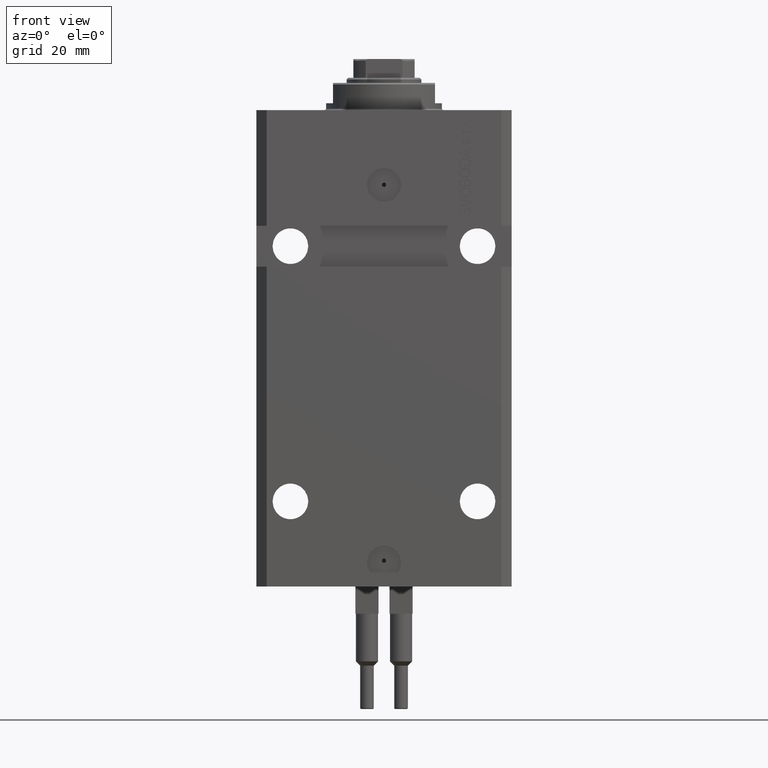
[diagram: clean part render]
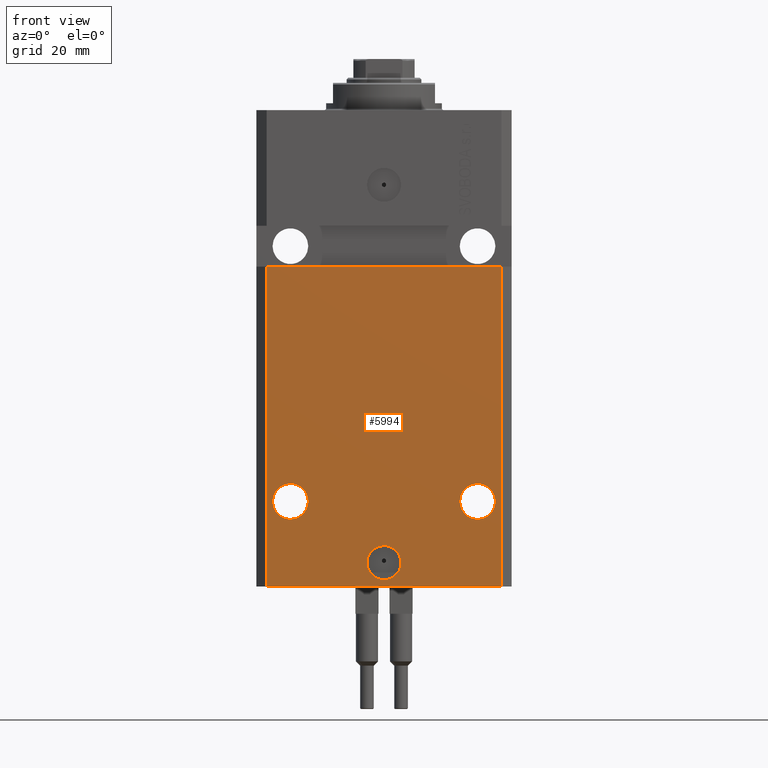
[diagram: same view with one face highlighted and labeled with its STEP entity id]
A machine part, front view. The second image highlights one B-rep face of the part: STEP entity #5994.
In plain terms, the highlighted planar face has unit normal (0, -1, 0).
Its self-contained STEP definition (entity closure, byte-faithful):
#613 = CARTESIAN_POINT ( 'NONE',  ( -34.49999999999998579, -27.49999999999999645, -140.0000000000000000 ) ) ;
#842 = VECTOR ( 'NONE', #12078, 1000.000000000000000 ) ;
#1368 = DIRECTION ( 'NONE',  ( 0.000000000000000000, -0.000000000000000000, -1.000000000000000000 ) ) ;
#3334 = EDGE_CURVE ( 'NONE', #6118, #24688, #34533, .T. ) ;
#4793 = DIRECTION ( 'NONE',  ( 1.176083712526788232E-16, -1.000000000000000000, 0.000000000000000000 ) ) ;
#4802 = DIRECTION ( 'NONE',  ( 1.176083712526788232E-16, -1.000000000000000000, 0.000000000000000000 ) ) ;
#5119 = EDGE_CURVE ( 'NONE', #23489, #16076, #34918, .T. ) ;
#5295 = CARTESIAN_POINT ( 'NONE',  ( -27.50000000000001776, -27.50000000000000000, -114.9999999999999858 ) ) ;
#5370 = ORIENTED_EDGE ( 'NONE', *, *, #14771, .F. ) ;
#5594 = EDGE_CURVE ( 'NONE', #41416, #22862, #46283, .T. ) ;
#5994 = ADVANCED_FACE ( 'NONE', ( #30369, #23292, #15496, #8186 ), #15969, .T. ) ;
#6118 = VERTEX_POINT ( 'NONE', #46842 ) ;
#7301 = AXIS2_PLACEMENT_3D ( 'NONE', #28797, #46581, #25371 ) ;
#7769 = AXIS2_PLACEMENT_3D ( 'NONE', #5295, #4802, #19648 ) ;
#8186 = FACE_OUTER_BOUND ( 'NONE', #19383, .T. ) ;
#8434 = ORIENTED_EDGE ( 'NONE', *, *, #33627, .F. ) ;
#8905 = CARTESIAN_POINT ( 'NONE',  ( -34.49999999999998579, -27.49999999999999645, -140.0000000000000000 ) ) ;
#10231 = DIRECTION ( 'NONE',  ( 1.176083712526788232E-16, -1.000000000000000000, 0.000000000000000000 ) ) ;
#10643 = CIRCLE ( 'NONE', #17669, 5.249999999999997335 ) ;
#10751 = VERTEX_POINT ( 'NONE', #44082 ) ;
#10850 = VERTEX_POINT ( 'NONE', #44799 ) ;
#12078 = DIRECTION ( 'NONE',  ( 1.000000000000000000, 0.000000000000000000, 0.000000000000000000 ) ) ;
#13979 = ORIENTED_EDGE ( 'NONE', *, *, #47723, .F. ) ;
#14406 = EDGE_LOOP ( 'NONE', ( #16365, #16146 ) ) ;
#14771 = EDGE_CURVE ( 'NONE', #25021, #10850, #37236, .T. ) ;
#15496 = FACE_BOUND ( 'NONE', #38982, .T. ) ;
#15969 = PLANE ( 'NONE',  #38545 ) ;
#16076 = VERTEX_POINT ( 'NONE', #24063 ) ;
#16146 = ORIENTED_EDGE ( 'NONE', *, *, #3334, .F. ) ;
#16365 = ORIENTED_EDGE ( 'NONE', *, *, #46834, .F. ) ;
#16724 = VECTOR ( 'NONE', #31503, 1000.000000000000000 ) ;
#17130 = CIRCLE ( 'NONE', #7769, 5.249999999999997335 ) ;
#17669 = AXIS2_PLACEMENT_3D ( 'NONE', #44210, #22043, #40558 ) ;
#18166 = DIRECTION ( 'NONE',  ( 0.000000000000000000, 0.000000000000000000, 1.000000000000000000 ) ) ;
#18171 = CARTESIAN_POINT ( 'NONE',  ( -22.25000000000002132, -27.50000000000000000, -114.9999999999999858 ) ) ;
#18889 = LINE ( 'NONE', #34006, #40490 ) ;
#19318 = ORIENTED_EDGE ( 'NONE', *, *, #5594, .F. ) ;
#19383 = EDGE_LOOP ( 'NONE', ( #37802, #8434, #36713, #36137 ) ) ;
#19638 = DIRECTION ( 'NONE',  ( 1.000000000000000000, 0.000000000000000000, 0.000000000000000000 ) ) ;
#19648 = DIRECTION ( 'NONE',  ( -1.000000000000000000, 0.000000000000000000, 0.000000000000000000 ) ) ;
#20693 = DIRECTION ( 'NONE',  ( 1.000000000000000000, 0.000000000000000000, 0.000000000000000000 ) ) ;
#20704 = DIRECTION ( 'NONE',  ( -1.000000000000000000, 0.000000000000000000, 0.000000000000000000 ) ) ;
#21202 = CARTESIAN_POINT ( 'NONE',  ( -5.000000000000006217, -27.49999999999999645, -133.0000000000000000 ) ) ;
#22043 = DIRECTION ( 'NONE',  ( 1.176083712526788232E-16, -1.000000000000000000, 0.000000000000000000 ) ) ;
#22862 = VERTEX_POINT ( 'NONE', #18171 ) ;
#23292 = FACE_BOUND ( 'NONE', #14406, .T. ) ;
#23489 = VERTEX_POINT ( 'NONE', #40653 ) ;
#24063 = CARTESIAN_POINT ( 'NONE',  ( 34.49999999999999289, -27.49999999999999289, -45.99999999999999289 ) ) ;
#24688 = VERTEX_POINT ( 'NONE', #31521 ) ;
#24848 = EDGE_CURVE ( 'NONE', #10751, #16076, #30499, .T. ) ;
#25021 = VERTEX_POINT ( 'NONE', #21202 ) ;
#25286 = AXIS2_PLACEMENT_3D ( 'NONE', #43364, #10231, #20704 ) ;
#25371 = DIRECTION ( 'NONE',  ( 1.000000000000000000, 0.000000000000000000, 0.000000000000000000 ) ) ;
#27880 = CARTESIAN_POINT ( 'NONE',  ( -32.75000000000001421, -27.50000000000000000, -114.9999999999999858 ) ) ;
#28021 = EDGE_LOOP ( 'NONE', ( #13979, #5370 ) ) ;
#28797 = CARTESIAN_POINT ( 'NONE',  ( 27.50000000000001776, -27.49999999999999289, -114.9999999999999858 ) ) ;
#29457 = ORIENTED_EDGE ( 'NONE', *, *, #32725, .F. ) ;
#30369 = FACE_BOUND ( 'NONE', #28021, .T. ) ;
#30499 = LINE ( 'NONE', #45828, #33168 ) ;
#30853 = DIRECTION ( 'NONE',  ( 0.000000000000000000, -1.000000000000000000, 0.000000000000000000 ) ) ;
#31463 = DIRECTION ( 'NONE',  ( 1.000000000000000000, 9.251858538542972814E-17, 9.251858538542972814E-17 ) ) ;
#31503 = DIRECTION ( 'NONE',  ( 0.000000000000000000, 0.000000000000000000, 1.000000000000000000 ) ) ;
#31521 = CARTESIAN_POINT ( 'NONE',  ( 32.75000000000001421, -27.49999999999999289, -114.9999999999999858 ) ) ;
#32725 = EDGE_CURVE ( 'NONE', #22862, #41416, #17130, .T. ) ;
#33168 = VECTOR ( 'NONE', #31463, 1000.000000000000000 ) ;
#33254 = AXIS2_PLACEMENT_3D ( 'NONE', #44747, #4793, #19638 ) ;
#33627 = EDGE_CURVE ( 'NONE', #42073, #10751, #18889, .T. ) ;
#34006 = CARTESIAN_POINT ( 'NONE',  ( -34.49999999999998579, -27.49999999999999645, -140.0000000000000000 ) ) ;
#34533 = CIRCLE ( 'NONE', #7301, 5.249999999999997335 ) ;
#34918 = LINE ( 'NONE', #37848, #16724 ) ;
#36137 = ORIENTED_EDGE ( 'NONE', *, *, #5119, .T. ) ;
#36713 = ORIENTED_EDGE ( 'NONE', *, *, #38437, .T. ) ;
#37236 = CIRCLE ( 'NONE', #43463, 5.000000000000006217 ) ;
#37802 = ORIENTED_EDGE ( 'NONE', *, *, #24848, .F. ) ;
#37848 = CARTESIAN_POINT ( 'NONE',  ( 34.49999999999999289, -27.49999999999999645, -140.0000000000000000 ) ) ;
#38437 = EDGE_CURVE ( 'NONE', #42073, #23489, #38640, .T. ) ;
#38545 = AXIS2_PLACEMENT_3D ( 'NONE', #45208, #30853, #1368 ) ;
#38640 = LINE ( 'NONE', #8905, #842 ) ;
#38982 = EDGE_LOOP ( 'NONE', ( #29457, #19318 ) ) ;
#39221 = CARTESIAN_POINT ( 'NONE',  ( 0.000000000000000000, -27.49999999999999645, -133.0000000000000000 ) ) ;
#40490 = VECTOR ( 'NONE', #18166, 1000.000000000000000 ) ;
#40558 = DIRECTION ( 'NONE',  ( 1.000000000000000000, 0.000000000000000000, 0.000000000000000000 ) ) ;
#40653 = CARTESIAN_POINT ( 'NONE',  ( 34.49999999999999289, -27.49999999999999645, -140.0000000000000000 ) ) ;
#41416 = VERTEX_POINT ( 'NONE', #27880 ) ;
#42073 = VERTEX_POINT ( 'NONE', #613 ) ;
#43108 = DIRECTION ( 'NONE',  ( 1.176083712526788232E-16, -1.000000000000000000, 0.000000000000000000 ) ) ;
#43364 = CARTESIAN_POINT ( 'NONE',  ( -27.50000000000001776, -27.50000000000000000, -114.9999999999999858 ) ) ;
#43463 = AXIS2_PLACEMENT_3D ( 'NONE', #39221, #43108, #20693 ) ;
#44082 = CARTESIAN_POINT ( 'NONE',  ( -34.49999999999998579, -27.50000000000000000, -46.00000000000000000 ) ) ;
#44120 = CIRCLE ( 'NONE', #33254, 5.000000000000006217 ) ;
#44210 = CARTESIAN_POINT ( 'NONE',  ( 27.50000000000001776, -27.49999999999999289, -114.9999999999999858 ) ) ;
#44747 = CARTESIAN_POINT ( 'NONE',  ( 0.000000000000000000, -27.49999999999999645, -133.0000000000000000 ) ) ;
#44799 = CARTESIAN_POINT ( 'NONE',  ( 5.000000000000006217, -27.49999999999999645, -133.0000000000000000 ) ) ;
#45208 = CARTESIAN_POINT ( 'NONE',  ( -34.49999999999998579, -27.49999999999999645, -140.0000000000000000 ) ) ;
#45828 = CARTESIAN_POINT ( 'NONE',  ( -37.50000000000000000, -27.50000000000000000, -46.00000000000000000 ) ) ;
#46283 = CIRCLE ( 'NONE', #25286, 5.249999999999997335 ) ;
#46581 = DIRECTION ( 'NONE',  ( 1.176083712526788232E-16, -1.000000000000000000, 0.000000000000000000 ) ) ;
#46834 = EDGE_CURVE ( 'NONE', #24688, #6118, #10643, .T. ) ;
#46842 = CARTESIAN_POINT ( 'NONE',  ( 22.25000000000002132, -27.49999999999999289, -114.9999999999999858 ) ) ;
#47723 = EDGE_CURVE ( 'NONE', #10850, #25021, #44120, .T. ) ;